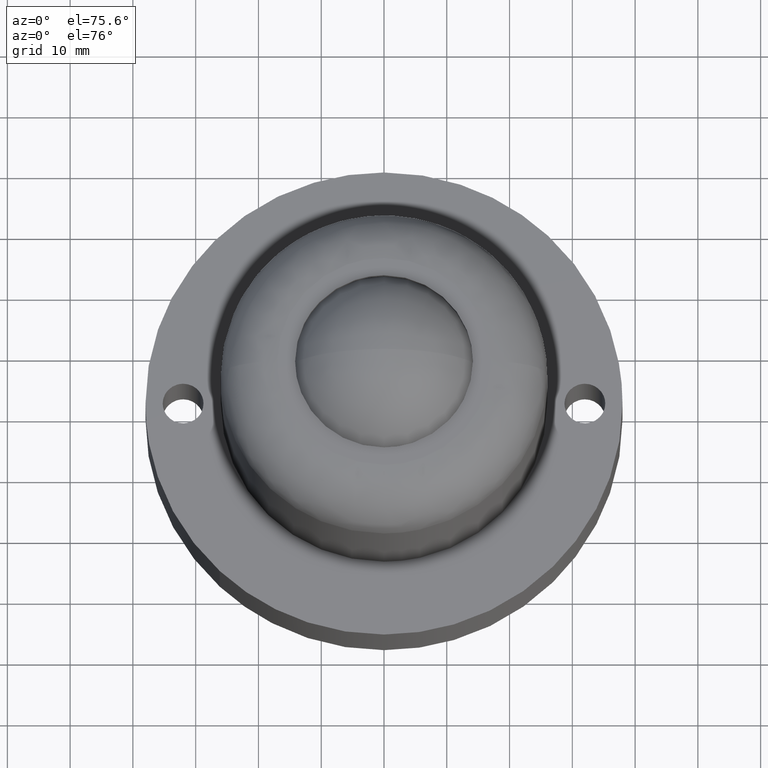
[diagram: clean part render]
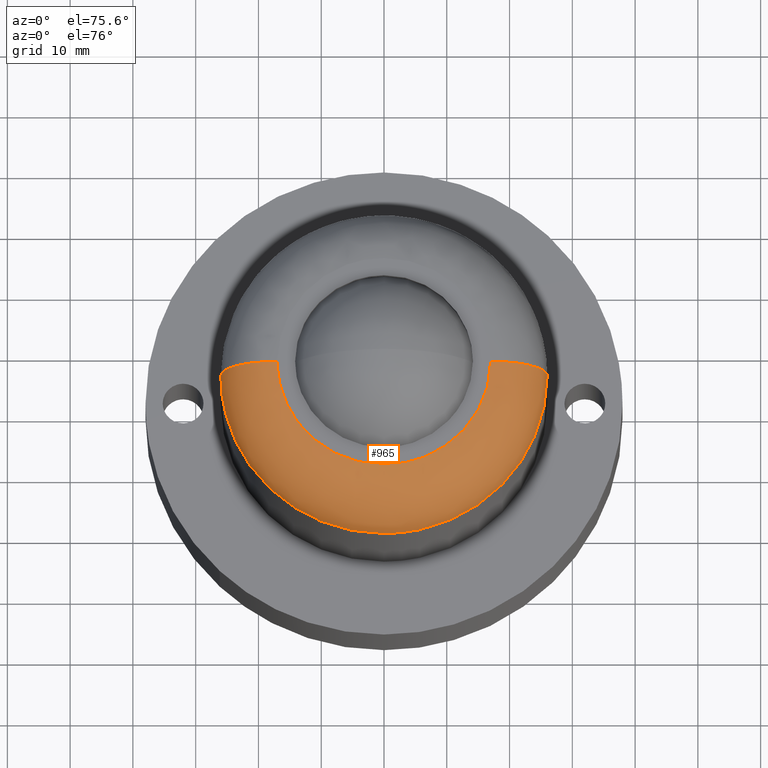
[diagram: same view with one face highlighted and labeled with its STEP entity id]
A machine part, auxiliary view. The second image highlights one B-rep face of the part: STEP entity #965.
In plain terms, the highlighted face is a freeform B-spline surface patch.
Its self-contained STEP definition (entity closure, byte-faithful):
#684=CARTESIAN_POINT('',(-0.000000763991117,-16.999999999999730,37.0));
#685=VERTEX_POINT('',#684);
#686=CARTESIAN_POINT('',(-17.000000000116270,-1.999253E-015,37.0));
#687=VERTEX_POINT('',#686);
#688=CARTESIAN_POINT('',(-0.000000763991117,-16.999999999999730,37.0));
#689=CARTESIAN_POINT('',(-0.695403229188149,-17.000014289889439,36.999999999999943));
#690=CARTESIAN_POINT('',(-2.225290277149363,-16.906023604350160,37.000000000000192));
#691=CARTESIAN_POINT('',(-4.618926252006056,-16.429947025275620,36.999999999999837));
#692=CARTESIAN_POINT('',(-6.945549124535017,-15.581314134229221,37.000000000000107));
#693=CARTESIAN_POINT('',(-8.970263986453315,-14.491021534872621,36.999999999999908));
#694=CARTESIAN_POINT('',(-10.845643389437599,-13.161672578798770,37.000000000000270));
#695=CARTESIAN_POINT('',(-12.471812514527880,-11.632298483564551,37.000000000000043));
#696=CARTESIAN_POINT('',(-14.022957719838020,-9.706381020731183,37.000000000000092));
#697=CARTESIAN_POINT('',(-15.332071966229710,-7.522358136277576,36.999999999999922));
#698=CARTESIAN_POINT('',(-16.250718320384991,-5.183594913962859,37.000000000000050));
#699=CARTESIAN_POINT('',(-16.854146540806699,-2.642503947934382,37.0));
#700=CARTESIAN_POINT('',(-17.000100670793980,-1.008343017076303,36.999999999999893));
#701=CARTESIAN_POINT('',(-17.000000000116270,-1.999253E-015,37.0));
#702=B_SPLINE_CURVE_WITH_KNOTS('',3,(#688,#689,#690,#691,#692,#693,#694,#695,#696,#697,#698,#699,#700,#701),.UNSPECIFIED.,.F.,.U.,(4,1,1,1,1,1,1,1,1,1,1,4),(0.000000060102945,2.086212439964452,4.589664210474638,7.301760944261968,9.492307218685408,11.474198681401591,14.186265424762841,16.168158507815068,18.880265339192022,21.800970193135569,23.678566615175551,26.703579015132849),.UNSPECIFIED.);
#703=EDGE_CURVE('',#685,#687,#702,.T.);
#705=CARTESIAN_POINT('',(17.000000000116270,9.822633E-016,37.0));
#706=VERTEX_POINT('',#705);
#707=CARTESIAN_POINT('',(17.000000000116270,9.822633E-016,37.0));
#708=CARTESIAN_POINT('',(17.000221732324810,-1.216974722045821,37.000000000000057));
#709=CARTESIAN_POINT('',(16.778727660274200,-3.268324419492958,36.999999999999858));
#710=CARTESIAN_POINT('',(16.034985560489542,-5.775166798195232,37.000000000000142));
#711=CARTESIAN_POINT('',(15.061222246289841,-8.009022250592434,36.999999999999851));
#712=CARTESIAN_POINT('',(13.779025572776680,-10.089930330782570,37.000000000000298));
#713=CARTESIAN_POINT('',(12.173557367206030,-11.928029979998760,36.999999999999538));
#714=CARTESIAN_POINT('',(10.591397686844250,-13.344430750440351,37.000000000000377));
#715=CARTESIAN_POINT('',(8.999592763220354,-14.472827071477029,36.999999999999787));
#716=CARTESIAN_POINT('',(6.883641009713552,-15.612285227763151,36.999999999999282));
#717=CARTESIAN_POINT('',(4.618289760996543,-16.430673063253479,37.000000000001357));
#718=CARTESIAN_POINT('',(2.190512606638910,-16.905771253611189,36.999999999997662));
#719=CARTESIAN_POINT('',(0.730171635319192,-17.000021689214279,37.000000000001933));
#720=CARTESIAN_POINT('',(-0.000000763991117,-16.999999999999730,37.0));
#721=B_SPLINE_CURVE_WITH_KNOTS('',3,(#707,#708,#709,#710,#711,#712,#713,#714,#715,#716,#717,#718,#719,#720),.UNSPECIFIED.,.F.,.U.,(4,1,1,1,1,1,1,1,1,1,1,4),(0.000000060019108,3.650873987877230,6.154337838714337,7.823316487702936,10.952647423046489,13.456062523317909,15.125044988737180,17.315601377159130,19.297505307886912,22.322526389621750,24.513061915850681,26.703579876330259),.UNSPECIFIED.);
#722=EDGE_CURVE('',#706,#685,#721,.T.);
#800=CARTESIAN_POINT('',(-25.999999999999741,-2.009686E-015,28.000000000059298));
#801=VERTEX_POINT('',#800);
#802=CARTESIAN_POINT('',(-17.000000000116270,-1.999253E-015,37.0));
#803=CARTESIAN_POINT('',(-17.625873018148841,-2.451713E-015,37.000095090647250));
#804=CARTESIAN_POINT('',(-18.583024501186710,-3.071125E-015,36.899725530709702));
#805=CARTESIAN_POINT('',(-19.971266290663380,-3.803926E-015,36.524694079569912));
#806=CARTESIAN_POINT('',(-21.264592071152070,-4.345490E-015,35.979735909724347));
#807=CARTESIAN_POINT('',(-22.659988171429131,-4.698986E-015,35.071937378966290));
#808=CARTESIAN_POINT('',(-23.983888055417101,-4.723738E-015,33.780209586883700));
#809=CARTESIAN_POINT('',(-25.012835332804151,-4.356190E-015,32.240298206114588));
#810=CARTESIAN_POINT('',(-25.795767929252978,-3.509168E-015,30.282390014102280));
#811=CARTESIAN_POINT('',(-26.000348859119811,-2.621035E-015,28.846795809583639));
#812=CARTESIAN_POINT('',(-25.999999999999741,-2.009686E-015,28.000000000059298));
#813=B_SPLINE_CURVE_WITH_KNOTS('',3,(#802,#803,#804,#805,#806,#807,#808,#809,#810,#811,#812),.UNSPECIFIED.,.F.,.U.,(4,1,1,1,1,1,1,1,4),(0.000000042109791,1.877599280406029,2.871624140780124,4.307446377275330,6.074605069650701,7.841735933651200,9.829809876793858,11.596975866118900,14.137255645777801),.UNSPECIFIED.);
#814=EDGE_CURVE('',#687,#801,#813,.T.);
#818=CARTESIAN_POINT('',(25.999999999999869,2.586843E-016,28.000000000059298));
#819=VERTEX_POINT('',#818);
#820=CARTESIAN_POINT('',(17.000000000116270,9.822633E-016,37.0));
#821=CARTESIAN_POINT('',(17.625873009518578,1.150446E-015,37.000095421918232));
#822=CARTESIAN_POINT('',(18.583024202106682,1.372563E-015,36.899724871484352));
#823=CARTESIAN_POINT('',(19.971271721051640,1.614631E-015,36.524704057815690));
#824=CARTESIAN_POINT('',(20.992287722450570,1.738745E-015,36.094419112084189));
#825=CARTESIAN_POINT('',(22.106924084292132,1.811453E-015,35.444807298461022));
#826=CARTESIAN_POINT('',(23.039074806830730,1.807952E-015,34.717323879426473));
#827=CARTESIAN_POINT('',(24.107363506530639,1.703339E-015,33.595391045345622));
#828=CARTESIAN_POINT('',(25.012822255031899,1.473592E-015,32.240297586899288));
#829=CARTESIAN_POINT('',(25.795777387984810,1.000513E-015,30.282391712091950));
#830=CARTESIAN_POINT('',(26.000345719502679,5.543614E-016,28.846795347551119));
#831=CARTESIAN_POINT('',(25.999999999999869,2.586843E-016,28.000000000059298));
#832=B_SPLINE_CURVE_WITH_KNOTS('',3,(#820,#821,#822,#823,#824,#825,#826,#827,#828,#829,#830,#831),.UNSPECIFIED.,.F.,.U.,(4,1,1,1,1,1,1,1,1,4),(0.000000042103247,1.877599280399712,2.871624140773664,4.307446377268885,5.191027287405660,6.737319881447710,7.841735933646075,9.829809876790517,11.596975866117180,14.137255645778049),.UNSPECIFIED.);
#833=EDGE_CURVE('',#706,#819,#832,.T.);
#884=CARTESIAN_POINT('',(16.375844820817836,0.457815198138171,36.978331154078710));
#885=CARTESIAN_POINT('',(16.375844820817832,0.230240699616921,36.978331154078703));
#886=CARTESIAN_POINT('',(16.375844820817839,-16.375844820817839,36.978331154078710));
#887=CARTESIAN_POINT('',(2.005396E-015,-16.375844820817832,36.978331154078703));
#888=CARTESIAN_POINT('',(-16.375844820817822,-16.375844820817839,36.978331154078710));
#889=CARTESIAN_POINT('',(-16.375844820817832,0.230240699616922,36.978331154078710));
#890=CARTESIAN_POINT('',(-16.375844820817829,0.457815198138177,36.978331154078703));
#891=CARTESIAN_POINT('',(26.699653447279470,0.746435207889097,37.696021169350850));
#892=CARTESIAN_POINT('',(26.699653447279481,0.375391129831429,37.696021169350843));
#893=CARTESIAN_POINT('',(26.699653447279474,-26.699653447279474,37.696021169350828));
#894=CARTESIAN_POINT('',(3.269657E-015,-26.699653447279466,37.696021169350836));
#895=CARTESIAN_POINT('',(-26.699653447279474,-26.699653447279474,37.696021169350828));
#896=CARTESIAN_POINT('',(-26.699653447279474,0.375391129831430,37.696021169350836));
#897=CARTESIAN_POINT('',(-26.699653447279481,0.746435207889106,37.696021169350843));
#898=CARTESIAN_POINT('',(25.978096750033078,0.726262836574376,27.372482074327067));
#899=CARTESIAN_POINT('',(25.978096750033075,0.365246204753970,27.372482074327067));
#900=CARTESIAN_POINT('',(25.978096750033068,-25.978096750033068,27.372482074327067));
#901=CARTESIAN_POINT('',(3.181294E-015,-25.978096750033075,27.372482074327067));
#902=CARTESIAN_POINT('',(-25.978096750033068,-25.978096750033068,27.372482074327067));
#903=CARTESIAN_POINT('',(-25.978096750033075,0.365246204753972,27.372482074327074));
#904=CARTESIAN_POINT('',(-25.978096750033071,0.726262836574386,27.372482074327074));
#912=(BOUNDED_SURFACE()B_SPLINE_SURFACE(2,2,((#884,#891,#898),(#885,#892,#899),(#886,#893,#900),(#887,#894,#901),(#888,#895,#902),(#889,#896,#903),(#890,#897,#904)),.UNSPECIFIED.,.F.,.F.,.U.)B_SPLINE_SURFACE_WITH_KNOTS((3,1,2,1,3),(3,3),(0.0,0.860838399880311,43.902758393896796,86.944678387913285,87.805516787793621),(0.0,16.404544592973181),.UNSPECIFIED.)GEOMETRIC_REPRESENTATION_ITEM()RATIONAL_B_SPLINE_SURFACE(((0.926697838400259,0.606435486919035,0.921564728292852),(0.921332230155912,0.602924207283492,0.916228840909793),(0.647686209694202,0.423848945870745,0.644098584373797),(0.915966621911565,0.599412927647948,0.910892953526734),(0.647686209694202,0.423848945870745,0.644098584373797),(0.921332230155912,0.602924207283492,0.916228840909793),(0.926697838400259,0.606435486919036,0.921564728292852)))REPRESENTATION_ITEM('')SURFACE());
#913=ORIENTED_EDGE('',*,*,#814,.T.);
#914=CARTESIAN_POINT('',(-0.000000937669430,-25.999999999999979,28.000000000059298));
#915=VERTEX_POINT('',#914);
#916=CARTESIAN_POINT('',(-0.000000937669430,-25.999999999999979,28.000000000059298));
#917=CARTESIAN_POINT('',(-1.329447299209452,-26.000081678380820,28.000000000059298));
#918=CARTESIAN_POINT('',(-3.828783729788278,-25.807873356318751,28.000000000059341));
#919=CARTESIAN_POINT('',(-7.677127066206571,-24.943788153502140,28.000000000059298));
#920=CARTESIAN_POINT('',(-10.909306903873460,-23.685579761805741,28.000000000059259));
#921=CARTESIAN_POINT('',(-13.801204650618409,-22.093800438023170,28.000000000059519));
#922=CARTESIAN_POINT('',(-16.027126123036599,-20.536331033175291,28.000000000058979));
#923=CARTESIAN_POINT('',(-18.232693358749550,-18.610063772366338,28.000000000059881));
#924=CARTESIAN_POINT('',(-20.393971313000641,-16.254719896198019,28.000000000059110));
#925=CARTESIAN_POINT('',(-22.554950540971710,-13.146173902241230,28.000000000058979));
#926=CARTESIAN_POINT('',(-24.182957335445749,-9.784374526134194,28.000000000059220));
#927=CARTESIAN_POINT('',(-25.189935838087312,-6.638982399821145,28.000000000059380));
#928=CARTESIAN_POINT('',(-25.832378537823420,-3.509721972073266,28.000000000059220));
#929=CARTESIAN_POINT('',(-26.000090544594439,-1.329455927772033,28.000000000059330));
#930=CARTESIAN_POINT('',(-25.999999999999741,-2.009686E-015,28.000000000059298));
#931=B_SPLINE_CURVE_WITH_KNOTS('',3,(#916,#917,#918,#919,#920,#921,#922,#923,#924,#925,#926,#927,#928,#929,#930),.UNSPECIFIED.,.F.,.U.,(4,1,1,1,1,1,1,1,1,1,1,1,4),(0.000000047675670,3.988331005912372,7.498105351484185,11.805535395619620,14.358083796720390,17.389261568347461,19.941815326538979,23.132461344886462,26.961284697933039,31.268713449288100,34.299867382881622,36.852413289023367,40.840768035391697),.UNSPECIFIED.);
#932=EDGE_CURVE('',#915,#801,#931,.T.);
#933=ORIENTED_EDGE('',*,*,#932,.F.);
#934=CARTESIAN_POINT('',(18.859733453716789,-17.897218830917691,28.000000000059298));
#935=VERTEX_POINT('',#934);
#936=CARTESIAN_POINT('',(18.859733453716789,-17.897218830917691,28.000000000059298));
#937=CARTESIAN_POINT('',(17.914158454963768,-18.893777905210101,28.000000000059281));
#938=CARTESIAN_POINT('',(16.151444560630470,-20.478441537135350,28.000000000059320));
#939=CARTESIAN_POINT('',(13.190670555578849,-22.486701957116491,28.000000000059298));
#940=CARTESIAN_POINT('',(10.537574231063459,-23.831692254080728,28.000000000059249));
#941=CARTESIAN_POINT('',(7.443142680417130,-24.979069380736320,28.000000000059270));
#942=CARTESIAN_POINT('',(4.066329200390253,-25.786104664798739,28.000000000059320));
#943=CARTESIAN_POINT('',(1.373768219460312,-26.000095592449298,28.000000000059309));
#944=CARTESIAN_POINT('',(-0.000000937669430,-25.999999999999979,28.000000000059298));
#945=B_SPLINE_CURVE_WITH_KNOTS('',3,(#936,#937,#938,#939,#940,#941,#942,#943,#944),.UNSPECIFIED.,.F.,.U.,(4,1,1,1,1,1,4),(0.000000013964524,4.121299564114231,7.088642483410446,10.715370031439241,13.023302604505609,16.979767260915128,21.101066811068389),.UNSPECIFIED.);
#946=EDGE_CURVE('',#935,#915,#945,.T.);
#947=ORIENTED_EDGE('',*,*,#946,.F.);
#948=CARTESIAN_POINT('',(25.999999999999869,2.586843E-016,28.000000000059298));
#949=CARTESIAN_POINT('',(26.000029154822681,-1.028106891429084,28.000000000059298));
#950=CARTESIAN_POINT('',(25.874829404115498,-3.135723165580450,28.000000000059309));
#951=CARTESIAN_POINT('',(25.309584497955459,-6.226279493549155,28.000000000059309));
#952=CARTESIAN_POINT('',(24.496467087887989,-8.831620408258706,28.000000000059352));
#953=CARTESIAN_POINT('',(23.381654426234409,-11.487678221206790,28.000000000059149));
#954=CARTESIAN_POINT('',(21.713681531671099,-14.510968767350430,28.000000000059309));
#955=CARTESIAN_POINT('',(19.956796049979680,-16.741392480391351,28.000000000059380));
#956=CARTESIAN_POINT('',(18.859733453716789,-17.897218830917691,28.000000000059298));
#957=B_SPLINE_CURVE_WITH_KNOTS('',3,(#948,#949,#950,#951,#952,#953,#954,#955,#956),.UNSPECIFIED.,.F.,.U.,(4,1,1,1,1,1,4),(0.000000012720736,3.084321020091888,6.322879466610024,9.407212535532022,11.257784120637840,14.958993901676520,19.739702720165770),.UNSPECIFIED.);
#958=EDGE_CURVE('',#819,#935,#957,.T.);
#959=ORIENTED_EDGE('',*,*,#958,.F.);
#960=ORIENTED_EDGE('',*,*,#833,.F.);
#961=ORIENTED_EDGE('',*,*,#722,.T.);
#962=ORIENTED_EDGE('',*,*,#703,.T.);
#963=EDGE_LOOP('',(#913,#933,#947,#959,#960,#961,#962));
#964=FACE_OUTER_BOUND('',#963,.T.);
#965=ADVANCED_FACE('',(#964),#912,.T.);